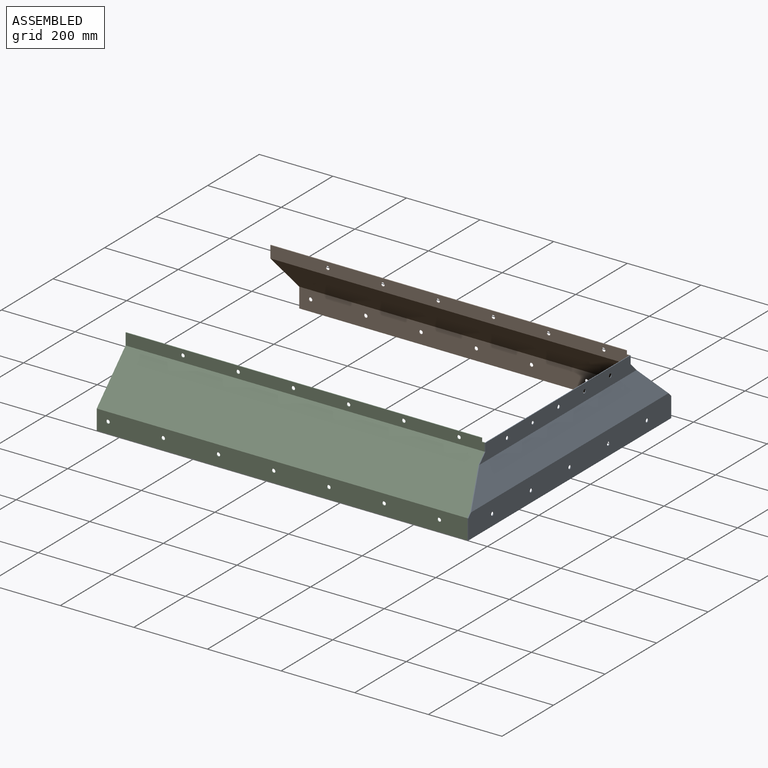
[diagram: assembled view]
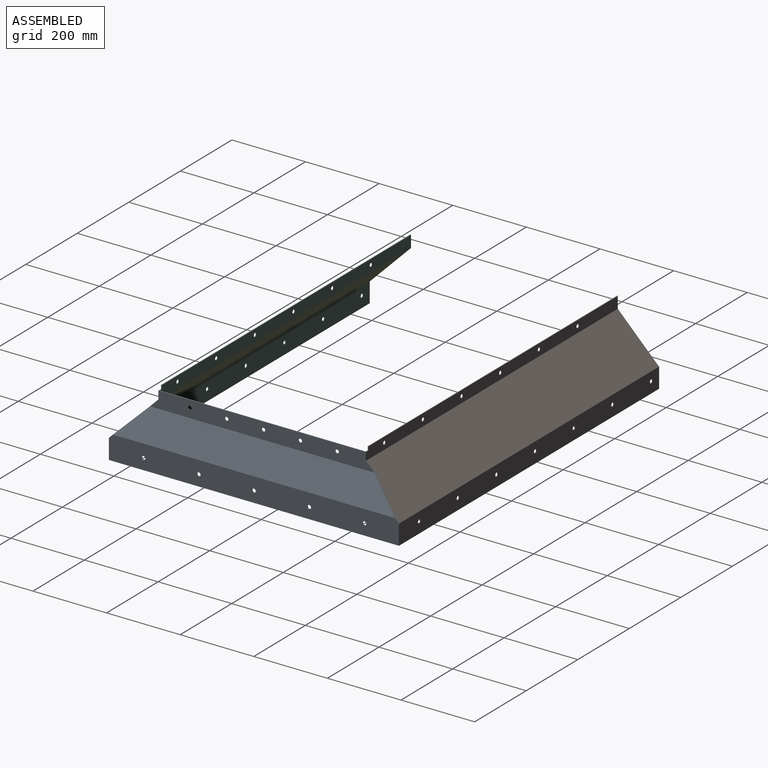
[diagram: assembled view, second angle]
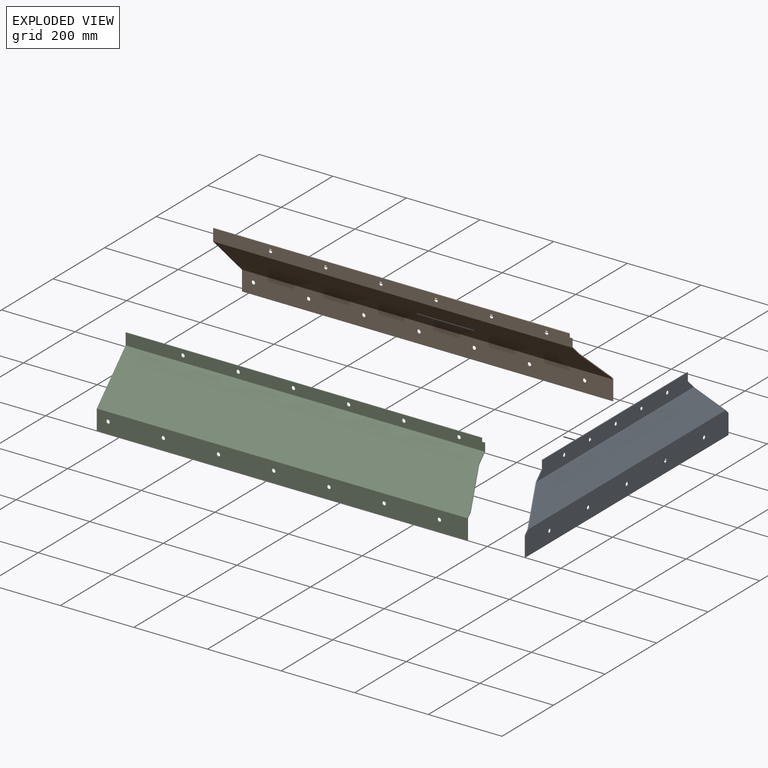
[diagram: exploded view]
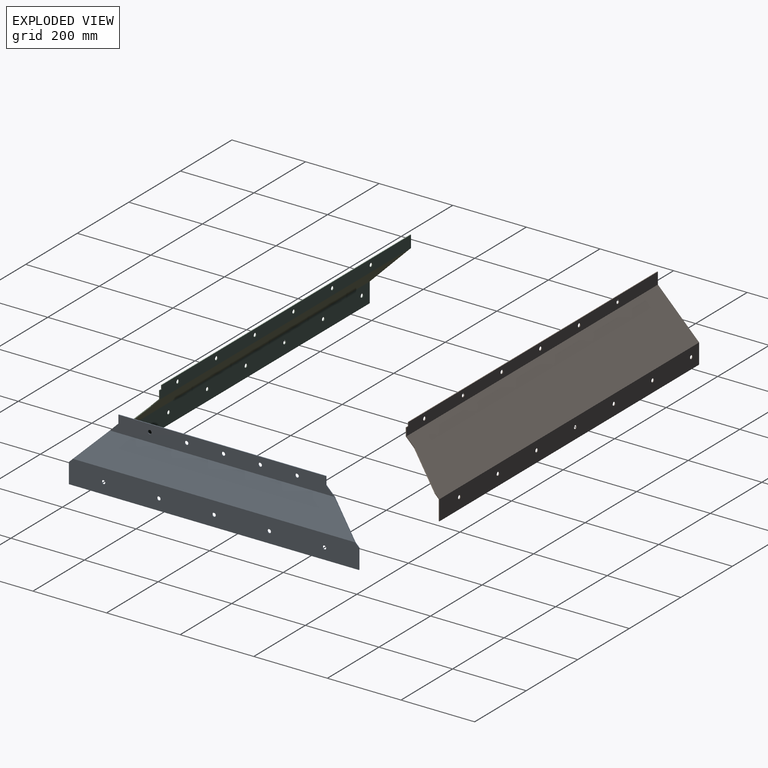
[diagram: exploded view, second angle]
ASSEMBLY  parts=3 mates=2
PART A: 24 faces, bbox 34x787.9x188.3 mm
  f0: plane 610.43x45.21mm, normal (-1,0,0), area 25639.1mm2, adj f2,f5,f7,f8,f12,f14,f16,f18
  f1: plane 766.25x78.3mm, normal (0.93,0,0.38), area 58191mm2, adj f4,f7,f10,f22
  f2: plane 767.03x78.3mm, normal (-0.93,0,-0.38), area 58257.4mm2, adj f0,f7,f9,f22
  f3: plane 787.87x2mm, normal (0,0,-1), area 1575.7mm2, adj f4,f6,f9,f21
  f4: plane 787.87x65.18mm, normal (1,0,0), area 50844.8mm2, adj f1,f3,f6,f7,f11,f13,f15,f17
  f5: plane 563.7x2mm, normal (0,0,1), area 1127.4mm2, adj f0,f8,f10,f23
  f6: plane 54.37x2mm, normal (0,-1,0), area 108.7mm2, adj f3,f4,f7,f9
  f7: plane 112.09x112.09mm, normal (0,-0.71,0.71), area 334.8mm2, adj f0,f1,f2,f4,f6,f8,f9,f10
  f8: plane 21.85x2mm, normal (0,-1,0), area 43.7mm2, adj f0,f5,f7,f10
  f9: plane 787.87x64.79mm, normal (-1,0,0), area 50543.5mm2, adj f2,f3,f6,f7,f11,f13,f15,f17
  f10: plane 609.65x44.82mm, normal (1,0,0), area 25399.4mm2, adj f1,f5,f7,f8,f12,f14,f16,f18
  f11: cylinder r=5mm len=10mm, axis (1,0,0), area 62.8mm2, adj f4,f9
  f12: cylinder r=5mm len=10mm, axis (1,0,0), area 62.8mm2, adj f0,f10
  f13: cylinder r=5mm len=10mm, axis (1,0,0), area 62.8mm2, adj f4,f9
  f14: cylinder r=5mm len=10mm, axis (1,0,0), area 62.8mm2, adj f0,f10
  f15: cylinder r=5mm len=10mm, axis (1,0,0), area 62.8mm2, adj f4,f9
  f16: cylinder r=5mm len=10mm, axis (1,0,0), area 62.8mm2, adj f0,f10
  f17: cylinder r=5mm len=10mm, axis (1,0,0), area 62.8mm2, adj f4,f9
  f18: cylinder r=5mm len=10mm, axis (1,0,0), area 62.8mm2, adj f0,f10
  f19: cylinder r=5mm len=10mm, axis (1,0,0), area 62.8mm2, adj f4,f9
  f20: cylinder r=5mm len=10mm, axis (1,0,0), area 62.8mm2, adj f0,f10
  f21: plane 54.37x2mm, normal (0,1,0), area 108.7mm2, adj f3,f4,f9,f22
  f22: plane 112.09x112.09mm, normal (0,0.71,0.71), area 334.8mm2, adj f0,f1,f2,f4,f9,f10,f21,f23
  f23: plane 21.85x2mm, normal (0,1,0), area 43.7mm2, adj f0,f5,f10,f22
PART B: 27 faces, bbox 1007.3x114.1x198.3 mm
  f0: plane 10x2mm, normal (1,0,0), area 20mm2, adj f1,f20,f21,f26
  f1: plane 8x2mm, normal (0,0,1), area 16mm2, adj f0,f2,f20,f21
  f2: plane 45.21x25.37mm, normal (1,0,0), area 109.4mm2, adj f1,f3,f20,f21,f22,f24
  f3: plane 81.13x78.3mm, normal (0.93,0,0.38), area 239.2mm2, adj f2,f4,f22,f24
  f4: plane 64.79x13.25mm, normal (1,0,0), area 138.6mm2, adj f3,f18,f19,f22,f23,f24
  f5: cylinder r=5mm len=10mm, axis (0,1,0), area 62.8mm2, adj f20,f21
  f6: cylinder r=5mm len=10mm, axis (0,1,0), area 62.8mm2, adj f20,f21
  f7: cylinder r=5mm len=10mm, axis (0,1,0), area 62.8mm2, adj f20,f21
  f8: cylinder r=5mm len=10mm, axis (0,1,0), area 62.8mm2, adj f20,f21
  f9: cylinder r=5mm len=10mm, axis (0,1,0), area 62.8mm2, adj f20,f21
  f10: cylinder r=5mm len=10mm, axis (0,1,0), area 62.8mm2, adj f20,f21
  f11: cylinder r=5mm len=10mm, axis (0,-1,0), area 62.8mm2, adj f18,f19
  f12: cylinder r=5mm len=10mm, axis (0,-1,0), area 62.8mm2, adj f18,f19
  f13: cylinder r=5mm len=10mm, axis (0,-1,0), area 62.8mm2, adj f18,f19
  f14: cylinder r=5mm len=10mm, axis (0,-1,0), area 62.8mm2, adj f18,f19
  f15: cylinder r=5mm len=10mm, axis (0,-1,0), area 62.8mm2, adj f18,f19
  f16: cylinder r=5mm len=10mm, axis (0,-1,0), area 62.8mm2, adj f18,f19
  f17: cylinder r=5mm len=10mm, axis (0,-1,0), area 62.8mm2, adj f18,f19
  f18: plane 1007.28x54.37mm, normal (0,1,0), area 54214.6mm2, adj f4,f11,f12,f13,f14,f15,f16,f17
  f19: plane 1007.28x53.54mm, normal (0,-1,0), area 53380.1mm2, adj f4,f11,f12,f13,f14,f15,f16,f17
  f20: plane 975.28x31.85mm, normal (0,1,0), area 30507.6mm2, adj f0,f1,f2,f5,f6,f7,f8,f9
  f21: plane 975.28x32.67mm, normal (0,-1,0), area 31315.6mm2, adj f0,f1,f2,f5,f6,f7,f8,f9
  f22: plane 1007.28x112.09mm, normal (0,-0.71,-0.71), area 156874.9mm2, adj f2,f3,f4,f19,f21,f25
  f23: plane 1007.28x2mm, normal (0,0,-1), area 2014.6mm2, adj f4,f18,f19,f25
  f24: plane 1007.28x112.09mm, normal (0,0.71,0.71), area 156837.4mm2, adj f2,f3,f4,f18,f20,f25
  f25: plane 198.3x114.09mm, normal (-1,0,0), area 489.5mm2, adj f18,f19,f20,f21,f22,f23,f24,f26
  f26: plane 967.28x2mm, normal (0,0,1), area 1934.6mm2, adj f0,f20,f21,f25
PART C: 27 faces, bbox 1007.3x114.1x198.3 mm
  f0: plane 10x2mm, normal (1,0,0), area 20mm2, adj f1,f20,f21,f26
  f1: plane 8x2mm, normal (0,0,1), area 16mm2, adj f0,f2,f20,f21
  f2: plane 45.21x25.37mm, normal (1,0,0), area 109.4mm2, adj f1,f3,f20,f21,f22,f24
  f3: plane 81.13x78.3mm, normal (0.93,0,0.38), area 239.2mm2, adj f2,f4,f22,f24
  f4: plane 64.79x13.25mm, normal (1,0,0), area 138.6mm2, adj f3,f18,f19,f22,f23,f24
  f5: cylinder r=5mm len=10mm, axis (0,1,0), area 62.8mm2, adj f20,f21
  f6: cylinder r=5mm len=10mm, axis (0,1,0), area 62.8mm2, adj f20,f21
  f7: cylinder r=5mm len=10mm, axis (0,1,0), area 62.8mm2, adj f20,f21
  f8: cylinder r=5mm len=10mm, axis (0,1,0), area 62.8mm2, adj f20,f21
  f9: cylinder r=5mm len=10mm, axis (0,1,0), area 62.8mm2, adj f20,f21
  f10: cylinder r=5mm len=10mm, axis (0,1,0), area 62.8mm2, adj f20,f21
  f11: cylinder r=5mm len=10mm, axis (0,-1,0), area 62.8mm2, adj f18,f19
  f12: cylinder r=5mm len=10mm, axis (0,-1,0), area 62.8mm2, adj f18,f19
  f13: cylinder r=5mm len=10mm, axis (0,-1,0), area 62.8mm2, adj f18,f19
  f14: cylinder r=5mm len=10mm, axis (0,-1,0), area 62.8mm2, adj f18,f19
  f15: cylinder r=5mm len=10mm, axis (0,-1,0), area 62.8mm2, adj f18,f19
  f16: cylinder r=5mm len=10mm, axis (0,-1,0), area 62.8mm2, adj f18,f19
  f17: cylinder r=5mm len=10mm, axis (0,-1,0), area 62.8mm2, adj f18,f19
  f18: plane 1007.28x54.37mm, normal (0,-1,0), area 54214.6mm2, adj f4,f11,f12,f13,f14,f15,f16,f17
  f19: plane 1007.28x53.54mm, normal (0,1,0), area 53380.1mm2, adj f4,f11,f12,f13,f14,f15,f16,f17
  f20: plane 975.28x31.85mm, normal (0,-1,0), area 30507.6mm2, adj f0,f1,f2,f5,f6,f7,f8,f9
  f21: plane 975.28x32.67mm, normal (0,1,0), area 31315.6mm2, adj f0,f1,f2,f5,f6,f7,f8,f9
  f22: plane 1007.28x112.09mm, normal (0,0.71,-0.71), area 156874.9mm2, adj f2,f3,f4,f19,f21,f25
  f23: plane 1007.28x2mm, normal (0,0,-1), area 2014.6mm2, adj f4,f18,f19,f25
  f24: plane 1007.28x112.09mm, normal (0,-0.71,0.71), area 156837.4mm2, adj f2,f3,f4,f18,f20,f25
  f25: plane 198.3x114.09mm, normal (-1,0,0), area 489.5mm2, adj f18,f19,f20,f21,f22,f23,f24,f26
  f26: plane 967.28x2mm, normal (0,0,1), area 1934.6mm2, adj f0,f20,f21,f25
PLACE A t=(165.33,-782.03,1191.11)mm fixed
PLACE B t=(165.33,-788.33,1191.11)mm
PLACE C t=(165.33,-782.03,1191.11)mm
MATE fastened C.f2 <-> A.f0  axis (1,0,0) through (-62.39,-321.36,78.91)mm
MATE fastened B.f2 <-> A.f0  axis (1,0,0) through (-62.39,242.34,78.91)mm
